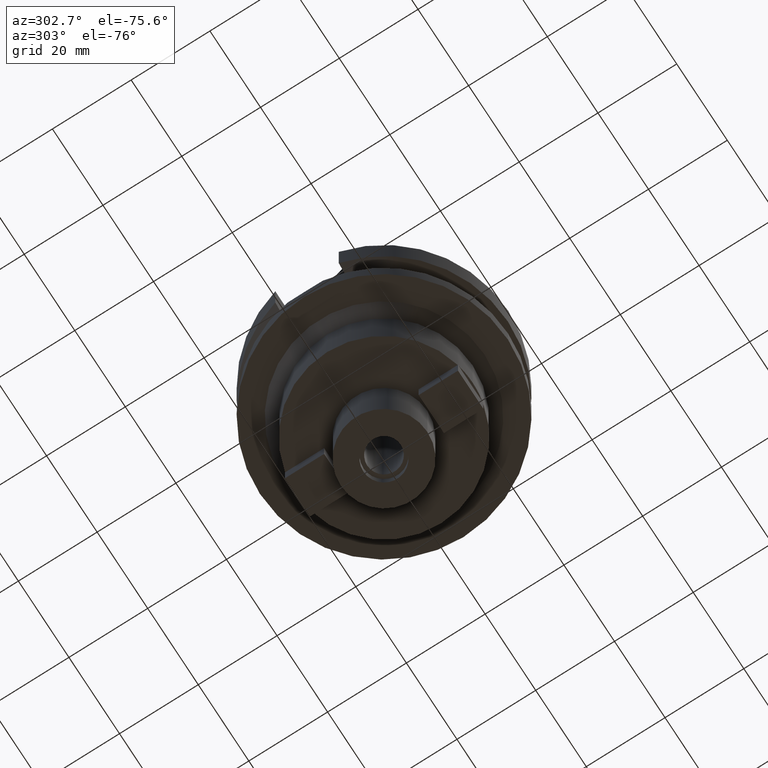
[diagram: clean part render]
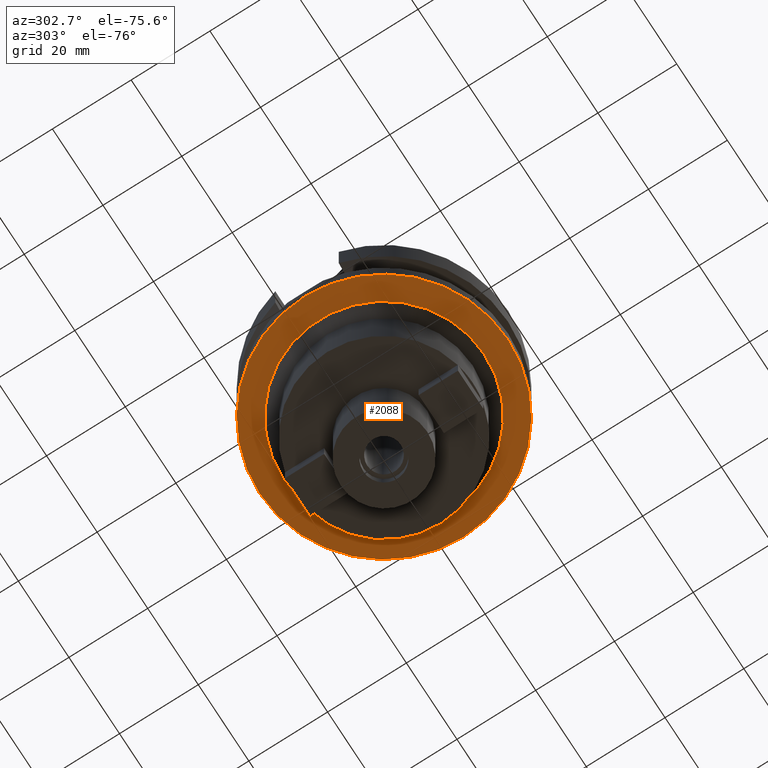
[diagram: same view with one face highlighted and labeled with its STEP entity id]
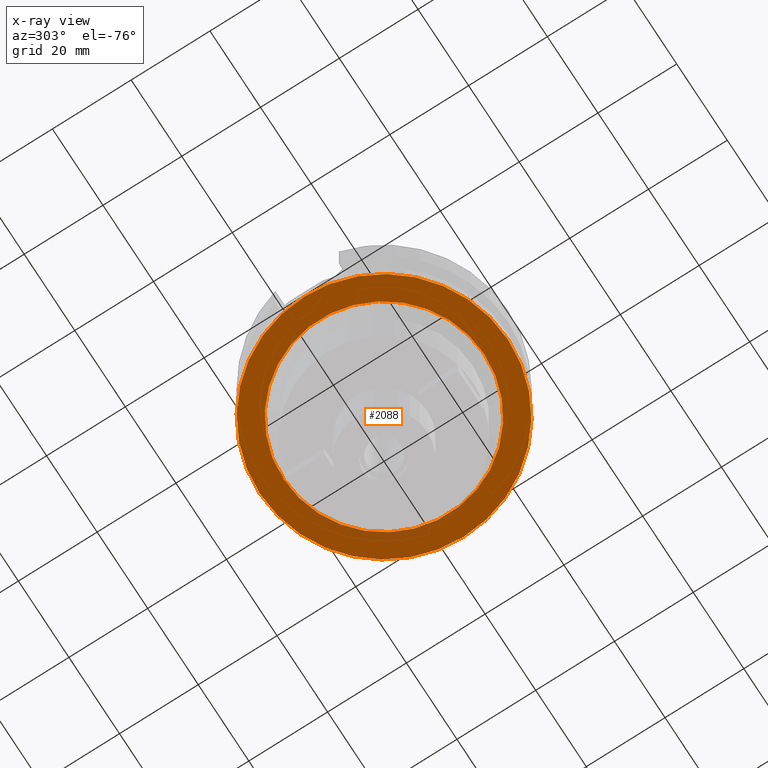
[diagram: x-ray of the same camera — body ghosted, the highlighted face saturated]
A machine part, auxiliary view. The second image highlights one B-rep face of the part: STEP entity #2088.
The next image is the same camera in x-ray: the body ghosted, the highlighted face saturated — about 4% of this face is hidden behind the body in this view.
In plain terms, the highlighted planar face has unit normal (0, 0, -1).
Its self-contained STEP definition (entity closure, byte-faithful):
#644=CARTESIAN_POINT('',(0.E0,2.104188130295E-14,-2.7E1));
#645=DIRECTION('',(0.E0,0.E0,1.E0));
#646=DIRECTION('',(0.E0,-1.E0,0.E0));
#647=AXIS2_PLACEMENT_3D('',#644,#645,#646);
#652=CARTESIAN_POINT('',(0.E0,2.104188130295E-14,-2.7E1));
#653=DIRECTION('',(0.E0,0.E0,1.E0));
#654=DIRECTION('',(0.E0,1.E0,0.E0));
#655=AXIS2_PLACEMENT_3D('',#652,#653,#654);
#660=CARTESIAN_POINT('',(0.E0,0.E0,-2.7E1));
#661=DIRECTION('',(0.E0,0.E0,-1.E0));
#662=DIRECTION('',(0.E0,-1.E0,0.E0));
#663=AXIS2_PLACEMENT_3D('',#660,#661,#662);
#668=CARTESIAN_POINT('',(0.E0,0.E0,-2.7E1));
#669=DIRECTION('',(0.E0,0.E0,-1.E0));
#670=DIRECTION('',(0.E0,1.E0,0.E0));
#671=AXIS2_PLACEMENT_3D('',#668,#669,#670);
#1393=CARTESIAN_POINT('',(0.E0,2.55E1,-2.7E1));
#1394=VERTEX_POINT('',#1393);
#1395=CARTESIAN_POINT('',(0.E0,-2.55E1,-2.7E1));
#1396=VERTEX_POINT('',#1395);
#1397=CARTESIAN_POINT('',(0.E0,-3.15E1,-2.7E1));
#1398=CARTESIAN_POINT('',(0.E0,3.15E1,-2.7E1));
#1399=VERTEX_POINT('',#1397);
#1400=VERTEX_POINT('',#1398);
#2073=CARTESIAN_POINT('',(0.E0,0.E0,-2.7E1));
#2074=DIRECTION('',(0.E0,0.E0,-1.E0));
#2075=DIRECTION('',(0.E0,-1.E0,0.E0));
#2076=AXIS2_PLACEMENT_3D('',#2073,#2074,#2075);
#2077=PLANE('',#2076);
#2079=ORIENTED_EDGE('',*,*,#2078,.T.);
#2081=ORIENTED_EDGE('',*,*,#2080,.T.);
#2082=EDGE_LOOP('',(#2079,#2081));
#2083=FACE_OUTER_BOUND('',#2082,.F.);
#2084=ORIENTED_EDGE('',*,*,#2066,.T.);
#2085=ORIENTED_EDGE('',*,*,#2055,.T.);
#2086=EDGE_LOOP('',(#2084,#2085));
#2087=FACE_BOUND('',#2086,.F.);
#648=CIRCLE('',#647,3.15E1);
#656=CIRCLE('',#655,3.15E1);
#664=CIRCLE('',#663,2.55E1);
#672=CIRCLE('',#671,2.55E1);
#2055=EDGE_CURVE('',#1394,#1396,#672,.T.);
#2066=EDGE_CURVE('',#1396,#1394,#664,.T.);
#2078=EDGE_CURVE('',#1399,#1400,#648,.T.);
#2080=EDGE_CURVE('',#1400,#1399,#656,.T.);
#2088=ADVANCED_FACE('',(#2083,#2087),#2077,.T.);